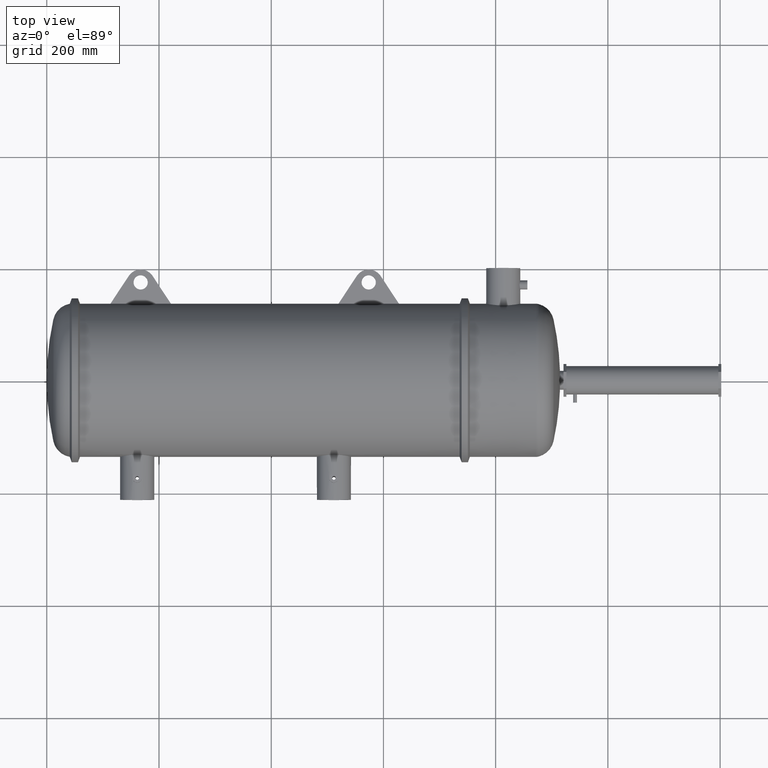
[diagram: clean part render]
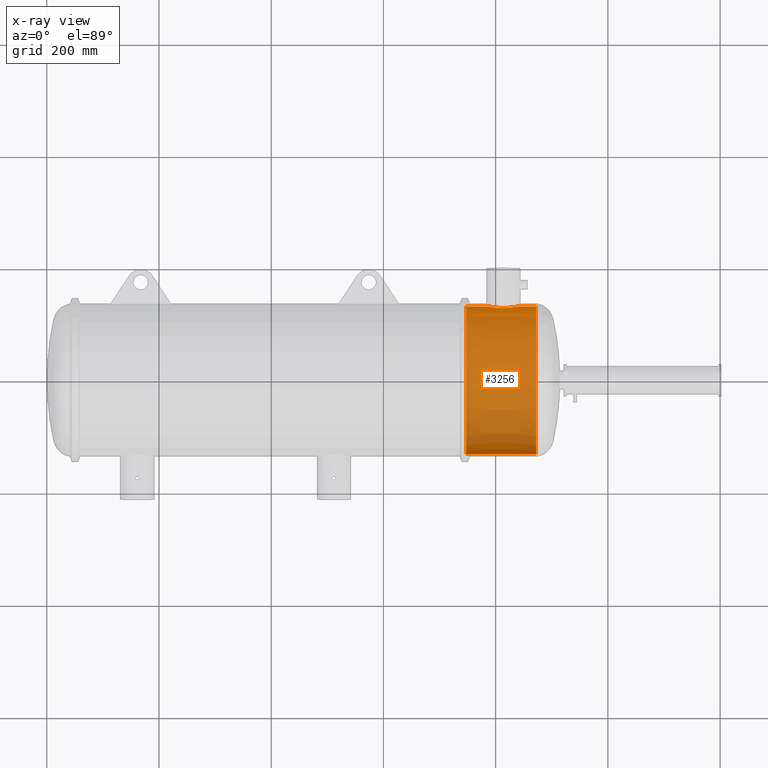
[diagram: x-ray — body ghosted, one internal face saturated and labeled with its STEP entity id]
A machine part, top view, then the same camera in x-ray: the body is ghosted and one INTERNAL B-rep face — a face not visible from any outside direction — is saturated and labeled: STEP entity #3256.
In plain terms, the highlighted conical surface has half-angle 0 deg.
Its self-contained STEP definition (entity closure, byte-faithful):
#3 = ORIENTED_EDGE ( 'NONE', *, *, #2600, .F. ) ;
#97 = EDGE_CURVE ( 'NONE', #2980, #2738, #5424, .T. ) ;
#200 = CARTESIAN_POINT ( 'NONE',  ( 33.02626896383865300, 5.177843485203694300, -0.06570446592609566200 ) ) ;
#220 = CARTESIAN_POINT ( 'NONE',  ( 32.63801226303375100, 5.116857916176735800, -0.7949739997189802000 ) ) ;
#238 = CARTESIAN_POINT ( 'NONE',  ( 32.15866841566472100, 5.082190036334372600, -0.9919559527002995700 ) ) ;
#274 = DIRECTION ( 'NONE',  ( 0.0000000000000000000, 1.000000000000000000, 0.0000000000000000000 ) ) ;
#287 = VERTEX_POINT ( 'NONE', #1451 ) ;
#366 = AXIS2_PLACEMENT_3D ( 'NONE', #5422, #502, #443 ) ;
#443 = DIRECTION ( 'NONE',  ( 0.0000000000000000000, 1.000000000000000000, 0.0000000000000000000 ) ) ;
#502 = DIRECTION ( 'NONE',  ( -1.000000000000000000, 1.127465836012422800E-020, -0.0000000000000000000 ) ) ;
#610 = ORIENTED_EDGE ( 'NONE', *, *, #1337, .F. ) ;
#624 = CARTESIAN_POINT ( 'NONE',  ( 31.86492185325195300, 5.083121380229826500, -0.9871866324668965300 ) ) ;
#633 = CARTESIAN_POINT ( 'NONE',  ( 32.93849745646124900, 5.161623456816356800, -0.4135834060931146100 ) ) ;
#643 = CARTESIAN_POINT ( 'NONE',  ( 31.89749141641555900, 5.082180006070196900, -0.9920024935691381700 ) ) ;
#646 = FACE_OUTER_BOUND ( 'NONE', #3388, .T. ) ;
#652 = CARTESIAN_POINT ( 'NONE',  ( 32.82151641637415900, 5.142225678564181600, -0.6092723984327983500 ) ) ;
#667 = CARTESIAN_POINT ( 'NONE',  ( 34.40437968757807100, 0.003374638380548246200, 0.0000000000000000000 ) ) ;
#684 = CARTESIAN_POINT ( 'NONE',  ( 31.27613908254342000, 5.135947011466766000, -0.6596599424942893900 ) ) ;
#704 = CARTESIAN_POINT ( 'NONE',  ( 31.29820278488855200, 5.132761957767424800, -0.6839860566637876400 ) ) ;
#748 = CARTESIAN_POINT ( 'NONE',  ( 31.02788265715272000, 5.178149126468831300, -7.048555803927251800E-018 ) ) ;
#775 = ORIENTED_EDGE ( 'NONE', *, *, #4159, .T. ) ;
#1044 = CARTESIAN_POINT ( 'NONE',  ( 32.97673263474192100, 5.168455658504330900, -0.3225085084924723100 ) ) ;
#1064 = DIRECTION ( 'NONE',  ( 0.0000000000000000000, 1.000000000000000000, 0.0000000000000000000 ) ) ;
#1066 = CARTESIAN_POINT ( 'NONE',  ( 32.92440305590181300, 5.159153908169434600, -0.4433077048079097600 ) ) ;
#1077 = CARTESIAN_POINT ( 'NONE',  ( 31.76762209680200400, 5.086862783059174800, -0.9678011802241232000 ) ) ;
#1083 = CARTESIAN_POINT ( 'NONE',  ( 32.77972133780036800, 5.135966192362561200, -0.6595518892782462600 ) ) ;
#1100 = CARTESIAN_POINT ( 'NONE',  ( 32.35043311992081500, 5.090491477002969700, -0.9488027946363436500 ) ) ;
#1112 = CARTESIAN_POINT ( 'NONE',  ( 31.58524892796761200, 5.099785534168169000, -0.8973038007009923600 ) ) ;
#1143 = AXIS2_PLACEMENT_3D ( 'NONE', #667, #2464, #274 ) ;
#1229 = CARTESIAN_POINT ( 'NONE',  ( 31.09802315772301600, 5.165050102511283800, -0.3682832777814953300 ) ) ;
#1240 = CARTESIAN_POINT ( 'NONE',  ( 29.42532792762487800, -5.171394282347959500, 0.0000000000000000000 ) ) ;
#1337 = EDGE_CURVE ( 'NONE', #2980, #287, #2709, .T. ) ;
#1343 = DIRECTION ( 'NONE',  ( 0.9999999999939654900, 3.474052818017293900E-006, 0.0000000000000000000 ) ) ;
#1399 = AXIS2_PLACEMENT_3D ( 'NONE', #2360, #4621, #1064 ) ;
#1451 = CARTESIAN_POINT ( 'NONE',  ( 29.42532792762487800, 5.178143559109057200, 6.687421678752465400E-016 ) ) ;
#1499 = CARTESIAN_POINT ( 'NONE',  ( 31.61479216173991000, 5.097297898641389900, -0.9112732396932734500 ) ) ;
#1509 = CARTESIAN_POINT ( 'NONE',  ( 32.79042054384134300, 5.137545788362966300, -0.6471497671956933900 ) ) ;
#1530 = CARTESIAN_POINT ( 'NONE',  ( 32.55681075514801400, 5.108018304524186700, -0.8492911845777695300 ) ) ;
#1584 = CARTESIAN_POINT ( 'NONE',  ( 31.70513205195180400, 5.090503158766122000, -0.9487269080026985400 ) ) ;
#1649 = CARTESIAN_POINT ( 'NONE',  ( 31.02829169633251300, 5.178070036298663600, -0.03302971166968513700 ) ) ;
#1670 = ORIENTED_EDGE ( 'NONE', *, *, #4591, .T. ) ;
#1684 = CARTESIAN_POINT ( 'NONE',  ( 31.02788265715272000, 5.178149126468831300, -0.01646499566465763400 ) ) ;
#1712 = LINE ( 'NONE', #1824, #5173 ) ;
#1824 = CARTESIAN_POINT ( 'NONE',  ( 34.40437968757807100, 5.178160856597855000, 0.0000000000000000000 ) ) ;
#1916 = EDGE_CURVE ( 'NONE', #4880, #2738, #5834, .T. ) ;
#1963 = CARTESIAN_POINT ( 'NONE',  ( 31.52743117186643200, 5.105194289082972700, -0.8659208243720230000 ) ) ;
#2010 = CARTESIAN_POINT ( 'NONE',  ( 32.89385522868695900, 5.153912003532781200, -0.5011587506279504600 ) ) ;
#2065 = CARTESIAN_POINT ( 'NONE',  ( 31.05360985505772900, 5.173235385181569300, -0.2277190039932945100 ) ) ;
#2121 = CARTESIAN_POINT ( 'NONE',  ( 31.02992870994352300, 5.177754070920308000, -0.06603764120600627600 ) ) ;
#2136 = CARTESIAN_POINT ( 'NONE',  ( 33.02788265715271600, 5.178156074574467900, 1.043532536040393700E-025 ) ) ;
#2360 = CARTESIAN_POINT ( 'NONE',  ( 29.42532792762487800, 0.003374638380548246200, 0.0000000000000000000 ) ) ;
#2361 = VECTOR ( 'NONE', #4893, 39.37007874015748100 ) ;
#2384 = CARTESIAN_POINT ( 'NONE',  ( 32.99568130184439200, 5.172014480334367700, -0.2600710706406794700 ) ) ;
#2419 = CARTESIAN_POINT ( 'NONE',  ( 31.49922288486025600, 5.108038407893931600, -0.8489931733330097200 ) ) ;
#2426 = CARTESIAN_POINT ( 'NONE',  ( 31.02788265715272000, 5.178149126468831300, -7.048555803927251800E-018 ) ) ;
#2464 = DIRECTION ( 'NONE',  ( 1.000000000000000000, -1.127465836012422800E-020, 0.0000000000000000000 ) ) ;
#2468 = CARTESIAN_POINT ( 'NONE',  ( 33.01489390632765700, 5.175657897494637900, -0.1639408082660423800 ) ) ;
#2497 = CARTESIAN_POINT ( 'NONE',  ( 31.41746942027419800, 5.116885422205173000, -0.7947759703884440500 ) ) ;
#2554 = EDGE_CURVE ( 'NONE', #287, #4140, #3832, .T. ) ;
#2600 = EDGE_CURVE ( 'NONE', #5067, #4880, #1712, .T. ) ;
#2613 = B_SPLINE_CURVE_WITH_KNOTS ( 'NONE', 3,
 ( #5630, #3766, #200, #3347, #2468, #2384, #1044, #4703, #633, #1066, #2854, #2010, #4219, #5612, #652, #1509, #1083, #5555, #4684, #2897, #220, #1530, #2919, #3364, #3810, #1100, #2837, #3830, #238, #4258, #5170, #3745 ),
 .UNSPECIFIED., .F., .F.,
 ( 4, 2, 2, 2, 2, 2, 2, 2, 2, 2, 2, 2, 2, 2, 2, 4 ),
 ( 0.02344610101755143600, 0.02593303259511353300, 0.02841996417267563000, 0.03339382732779981600, 0.03463729311658086300, 0.03588075890536190900, 0.03836769048292384300, 0.04085462206048577600, 0.04209808784926664900, 0.04334155363804750900, 0.04831541679317119500, 0.05080234837073317700, 0.05328927994829514600, 0.05826314310341908900, 0.06075007468098107100, 0.06323700625854304600 ),
 .UNSPECIFIED. ) ;
#2709 = CIRCLE ( 'NONE', #1399, 5.174768920728508800 ) ;
#2738 = VERTEX_POINT ( 'NONE', #4224 ) ;
#2837 = CARTESIAN_POINT ( 'NONE',  ( 32.28810072092289800, 5.086868717018401900, -0.9677787465587561800 ) ) ;
#2854 = CARTESIAN_POINT ( 'NONE',  ( 32.91701619339099900, 5.157873596754912500, -0.4579396267321286200 ) ) ;
#2897 = CARTESIAN_POINT ( 'NONE',  ( 32.68829318561085300, 5.123177646466555900, -0.7537610269489724000 ) ) ;
#2906 = ORIENTED_EDGE ( 'NONE', *, *, #2554, .F. ) ;
#2913 = CARTESIAN_POINT ( 'NONE',  ( 31.99523271239417700, 5.080610676180604900, -0.9999999999999995600 ) ) ;
#2919 = CARTESIAN_POINT ( 'NONE',  ( 32.52877325290109700, 5.105178235317970900, -0.8661373268978281900 ) ) ;
#2932 = CARTESIAN_POINT ( 'NONE',  ( 31.54180543253232100, 5.103803310401054300, -0.8740701424637020700 ) ) ;
#2980 = VERTEX_POINT ( 'NONE', #1240 ) ;
#3059 = CARTESIAN_POINT ( 'NONE',  ( 31.21467733077101400, 5.145288876426680400, -0.5828858642756064000 ) ) ;
#3256 = ADVANCED_FACE ( 'NONE', ( #646 ), #4111, .F. ) ;
#3347 = CARTESIAN_POINT ( 'NONE',  ( 33.01975197038952100, 5.176589995350338000, -0.1314821648733696900 ) ) ;
#3354 = CARTESIAN_POINT ( 'NONE',  ( 31.96262437186007700, 5.080925531563258900, -0.9984048172505106700 ) ) ;
#3364 = CARTESIAN_POINT ( 'NONE',  ( 32.47068234236732600, 5.099802605632399700, -0.8972255551023488000 ) ) ;
#3388 = EDGE_LOOP ( 'NONE', ( #610, #5447, #4276, #3, #775, #1670, #2906 ) ) ;
#3430 = CARTESIAN_POINT ( 'NONE',  ( 31.16041709560053600, 5.154055943564653600, -0.5017358209581839200 ) ) ;
#3472 = CARTESIAN_POINT ( 'NONE',  ( 31.09205666274871800, 5.166129120765367200, -0.3528457738024801700 ) ) ;
#3566 = CARTESIAN_POINT ( 'NONE',  ( 32.02788265715272300, 5.080610791787361100, -0.9999999999999993300 ) ) ;
#3634 = VECTOR ( 'NONE', #5392, 39.37007874015748100 ) ;
#3745 = CARTESIAN_POINT ( 'NONE',  ( 32.02788265715272300, 5.080610791787361100, -0.9999999999999993300 ) ) ;
#3766 = CARTESIAN_POINT ( 'NONE',  ( 33.02788265715273000, 5.178156074574468800, -0.03273603832624683000 ) ) ;
#3810 = CARTESIAN_POINT ( 'NONE',  ( 32.44093438172721700, 5.097297353673734900, -0.9112928502196444600 ) ) ;
#3830 = CARTESIAN_POINT ( 'NONE',  ( 32.19154143993041800, 5.083146543918402000, -0.9870628594828746400 ) ) ;
#3832 = LINE ( 'NONE', #4925, #3634 ) ;
#3840 = CARTESIAN_POINT ( 'NONE',  ( 31.26535131660863700, 5.137539382958371100, -0.6471593895278995300 ) ) ;
#3861 = CARTESIAN_POINT ( 'NONE',  ( 31.03601585141158700, 5.176582630794301900, -0.1314436123509240000 ) ) ;
#3883 = CARTESIAN_POINT ( 'NONE',  ( 31.12960392028002200, 5.159398444661263700, -0.4443371387275654200 ) ) ;
#3951 = CARTESIAN_POINT ( 'NONE',  ( 31.07581269353132600, 5.169098993134543500, -0.3063174370450303900 ) ) ;
#4111 = CONICAL_SURFACE ( 'NONE', #1143, 5.174786218217306600, 3.474052818024293800E-006 ) ;
#4140 = VERTEX_POINT ( 'NONE', #2426 ) ;
#4159 = EDGE_CURVE ( 'NONE', #5067, #5813, #2613, .T. ) ;
#4219 = CARTESIAN_POINT ( 'NONE',  ( 32.87708318660765600, 5.151110112209820200, -0.5290709333496759200 ) ) ;
#4224 = CARTESIAN_POINT ( 'NONE',  ( 34.32856488838123000, -5.171411316452140000, 6.337285055858533900E-016 ) ) ;
#4226 = CARTESIAN_POINT ( 'NONE',  ( 34.32856488838123000, 5.178160593213237700, 0.0000000000000000000 ) ) ;
#4249 = CARTESIAN_POINT ( 'NONE',  ( 31.36722995523025000, 5.123205922854891600, -0.7535260809388004700 ) ) ;
#4258 = CARTESIAN_POINT ( 'NONE',  ( 32.09321224666160100, 5.080925872357242100, -0.9984055145389165700 ) ) ;
#4276 = ORIENTED_EDGE ( 'NONE', *, *, #1916, .F. ) ;
#4290 = CARTESIAN_POINT ( 'NONE',  ( 31.48538228041829300, 5.109491735654557100, -0.8402145047081471800 ) ) ;
#4344 = B_SPLINE_CURVE_WITH_KNOTS ( 'NONE', 3,
 ( #5622, #2913, #3354, #643, #624, #1077, #1584, #1499, #1112, #2932, #1963, #2419, #4290, #2497, #4249, #4653, #704, #684, #3840, #4367, #3059, #3430, #3883, #1229, #3472, #4347, #3951, #5750, #2065, #5226, #3861, #4798, #2121, #1649, #1684, #748 ),
 .UNSPECIFIED., .F., .F.,
 ( 4, 2, 2, 2, 2, 2, 2, 2, 2, 2, 2, 2, 2, 2, 2, 2, 2, 4 ),
 ( 0.06323700625854304600, 0.06572439059890888800, 0.06821177493927474400, 0.07318654362000674700, 0.07567392796037260300, 0.07691762013055539200, 0.07816131230073816700, 0.08313608098146901800, 0.08437977315165165500, 0.08562346532183430500, 0.08811084966219937000, 0.09308561834292934700, 0.09432931051311187200, 0.09557300268329438400, 0.09806038702365943400, 0.1005477713640244600, 0.1017914635342070100, 0.1030351557043895400 ),
 .UNSPECIFIED. ) ;
#4347 = CARTESIAN_POINT ( 'NONE',  ( 31.08096085187893100, 5.168151890105612300, -0.3218843372852073200 ) ) ;
#4367 = CARTESIAN_POINT ( 'NONE',  ( 31.23411423691540600, 5.142240551816567700, -0.6091050632677044200 ) ) ;
#4591 = EDGE_CURVE ( 'NONE', #5813, #4140, #4344, .T. ) ;
#4621 = DIRECTION ( 'NONE',  ( 1.000000000000000000, -1.127465836012422800E-020, 0.0000000000000000000 ) ) ;
#4653 = CARTESIAN_POINT ( 'NONE',  ( 31.30949436705496700, 5.131166761927263000, -0.6958338424877010800 ) ) ;
#4684 = CARTESIAN_POINT ( 'NONE',  ( 32.74626430602238300, 5.131170764379374900, -0.6958422350343977900 ) ) ;
#4703 = CARTESIAN_POINT ( 'NONE',  ( 32.94521439083268200, 5.162814432254625900, -0.3984632875310102900 ) ) ;
#4798 = CARTESIAN_POINT ( 'NONE',  ( 31.03115266125504200, 5.177517975612849100, -0.08245369104878376400 ) ) ;
#4880 = VERTEX_POINT ( 'NONE', #4226 ) ;
#4893 = DIRECTION ( 'NONE',  ( 0.9999999999939654900, -3.474052818017317700E-006, 4.254487663653736200E-022 ) ) ;
#4925 = CARTESIAN_POINT ( 'NONE',  ( 34.40437968757807100, 5.178160856597855000, 0.0000000000000000000 ) ) ;
#4957 = CARTESIAN_POINT ( 'NONE',  ( 34.40437968757807100, -5.171411579836757300, 6.337285378411660800E-016 ) ) ;
#5067 = VERTEX_POINT ( 'NONE', #2136 ) ;
#5170 = CARTESIAN_POINT ( 'NONE',  ( 32.06052665884879400, 5.080610907373076300, -0.9999999999999993300 ) ) ;
#5173 = VECTOR ( 'NONE', #1343, 39.37007874015748100 ) ;
#5226 = CARTESIAN_POINT ( 'NONE',  ( 31.04084357594079400, 5.175656372513137700, -0.1637598541830161400 ) ) ;
#5392 = DIRECTION ( 'NONE',  ( 0.9999999999939654900, 3.474052818017293900E-006, 0.0000000000000000000 ) ) ;
#5422 = CARTESIAN_POINT ( 'NONE',  ( 34.32856488838123000, 0.003374638380548246200, 0.0000000000000000000 ) ) ;
#5424 = LINE ( 'NONE', #4957, #2361 ) ;
#5447 = ORIENTED_EDGE ( 'NONE', *, *, #97, .T. ) ;
#5555 = CARTESIAN_POINT ( 'NONE',  ( 32.75764220884702400, 5.132778392007787200, -0.6839013767199363400 ) ) ;
#5612 = CARTESIAN_POINT ( 'NONE',  ( 32.84091377804492100, 5.145267020798197400, -0.5831277631898456000 ) ) ;
#5622 = CARTESIAN_POINT ( 'NONE',  ( 32.02788265715272300, 5.080610791787361100, -0.9999999999999993300 ) ) ;
#5630 = CARTESIAN_POINT ( 'NONE',  ( 33.02788265715271600, 5.178156074574467900, 1.043532536040393700E-025 ) ) ;
#5750 = CARTESIAN_POINT ( 'NONE',  ( 31.06154847163643900, 5.171740593132496700, -0.2593618965346791700 ) ) ;
#5813 = VERTEX_POINT ( 'NONE', #3566 ) ;
#5834 = CIRCLE ( 'NONE', #366, 5.174785954832689300 ) ;